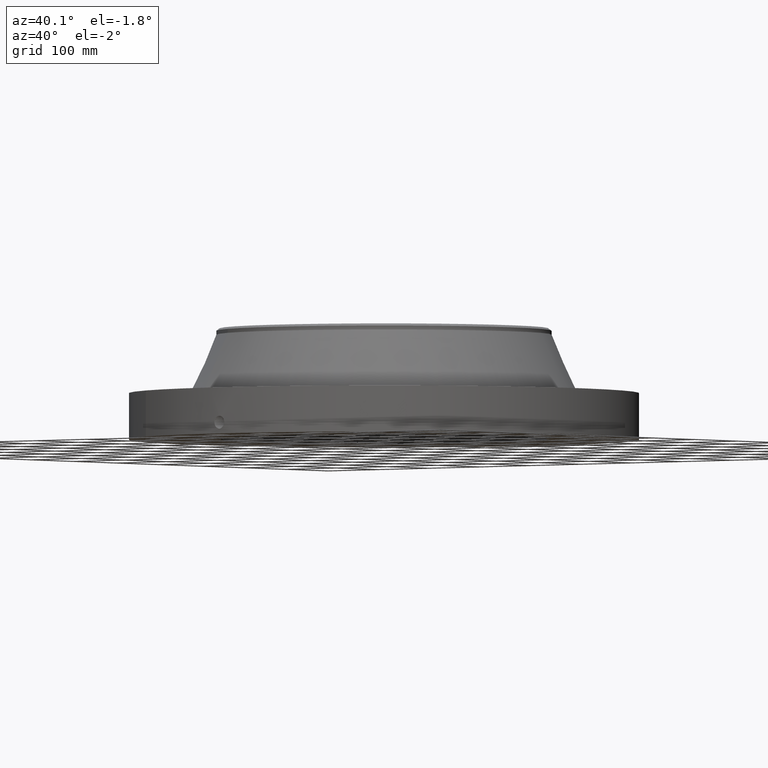
[diagram: clean part render]
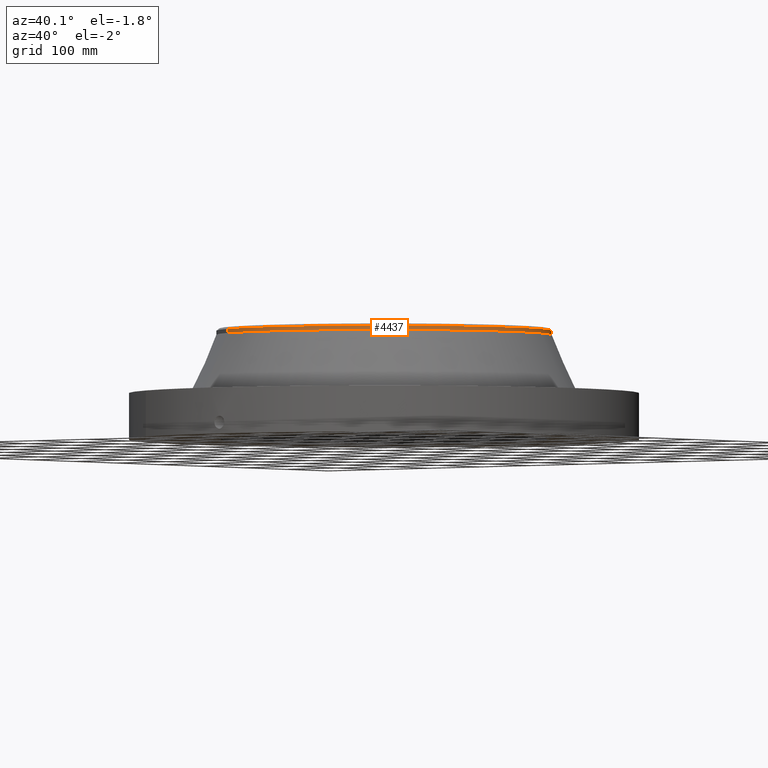
[diagram: same view with one face highlighted and labeled with its STEP entity id]
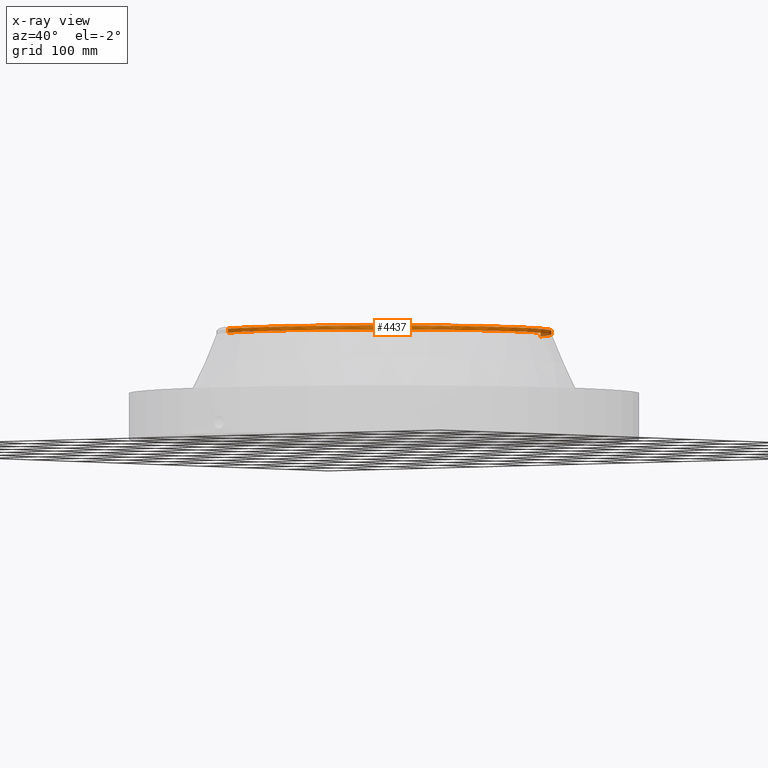
[diagram: x-ray of the same camera — body ghosted, the highlighted face saturated]
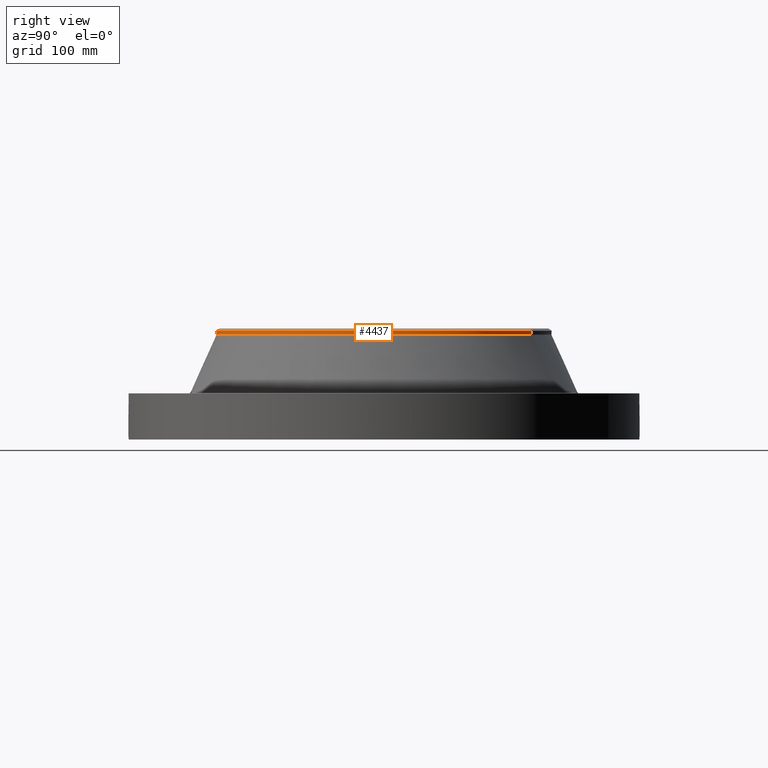
[diagram: same view with one face highlighted and labeled with its STEP entity id]
A machine part, auxiliary view. The second image highlights one B-rep face of the part: STEP entity #4437.
The next image is the same camera in x-ray: the body ghosted, the highlighted face saturated — about 2% of this face is hidden behind the body in this view.
A second angle (right view) of the same face is appended — the face is thin or edge-on in the first view.
In plain terms, the highlighted cylindrical surface (partial cylindrical patch) has radius 254 mm, axis along (0, 0, -1).
Its self-contained STEP definition (entity closure, byte-faithful):
#3600=AXIS2_PLACEMENT_3D('Circle Axis2P3D',#3598,#3599,$) ;
#4067=AXIS2_PLACEMENT_3D('Circle Axis2P3D',#4065,#4066,$) ;
#4080=AXIS2_PLACEMENT_3D('Circle Axis2P3D',#4078,#4079,$) ;
#4418=AXIS2_PLACEMENT_3D('Cylinder Axis2P3D',#4415,#4416,#4417) ;
#3595=CARTESIAN_POINT('Vertex',(4.79425538606,8.77582561894,6.50236722846)) ;
#3598=CARTESIAN_POINT('Axis2P3D Location',(0.,0.,6.50236722846)) ;
#3602=CARTESIAN_POINT('Vertex',(-4.79425538606,-8.77582561894,6.50236722846)) ;
#4048=CARTESIAN_POINT('Vertex',(4.79425538606,-8.77582561894,6.7385877009)) ;
#4062=CARTESIAN_POINT('Vertex',(-4.79425538606,-8.77582561894,6.7385877009)) ;
#4065=CARTESIAN_POINT('Axis2P3D Location',(0.,0.,6.7385877009)) ;
#4078=CARTESIAN_POINT('Axis2P3D Location',(0.,0.,6.7385877009)) ;
#4082=CARTESIAN_POINT('Vertex',(4.79425538606,8.77582561894,6.7385877009)) ;
#4415=CARTESIAN_POINT('Axis2P3D Location',(0.,0.,3.56000000001)) ;
#4420=CARTESIAN_POINT('Line Origine',(-4.79425538606,-8.77582561894,6.62047746468)) ;
#4425=CARTESIAN_POINT('Line Origine',(4.79425538606,8.77582561894,6.62047746468)) ;
#3599=DIRECTION('Axis2P3D Direction',(0.,0.,-0.0393700787402)) ;
#4066=DIRECTION('Axis2P3D Direction',(0.,0.,-0.0393700787402)) ;
#4079=DIRECTION('Axis2P3D Direction',(0.,0.,-0.0393700787402)) ;
#4416=DIRECTION('Axis2P3D Direction',(0.,0.,-0.0393700787402)) ;
#4417=DIRECTION('Axis2P3D XDirection',(-0.0188750212049,-0.0345504945626,0.)) ;
#4421=DIRECTION('Vector Direction',(0.,0.,-0.0393700787402)) ;
#4426=DIRECTION('Vector Direction',(0.,0.,-0.0393700787402)) ;
#4422=VECTOR('Line Direction',#4421,0.0393700787402) ;
#4427=VECTOR('Line Direction',#4426,0.0393700787402) ;
#4431=ORIENTED_EDGE('',*,*,#4424,.F.) ;
#4432=ORIENTED_EDGE('',*,*,#3604,.F.) ;
#4433=ORIENTED_EDGE('',*,*,#4429,.T.) ;
#4434=ORIENTED_EDGE('',*,*,#4084,.F.) ;
#4435=ORIENTED_EDGE('',*,*,#4069,.T.) ;
#4437=ADVANCED_FACE('PartBody',(#4436),#4419,.T.) ;
#3601=CIRCLE('generated circle',#3600,10.) ;
#4068=CIRCLE('generated circle',#4067,10.) ;
#4081=CIRCLE('generated circle',#4080,10.) ;
#4419=CYLINDRICAL_SURFACE('generated cylinder',#4418,10.) ;
#3604=EDGE_CURVE('',#3596,#3603,#3601,.T.) ;
#4069=EDGE_CURVE('',#4049,#4063,#4068,.T.) ;
#4084=EDGE_CURVE('',#4049,#4083,#4081,.F.) ;
#4424=EDGE_CURVE('',#3603,#4063,#4423,.F.) ;
#4429=EDGE_CURVE('',#3596,#4083,#4428,.F.) ;
#4430=EDGE_LOOP('',(#4431,#4432,#4433,#4434,#4435)) ;
#4436=FACE_OUTER_BOUND('',#4430,.T.) ;
#4423=LINE('Line',#4420,#4422) ;
#4428=LINE('Line',#4425,#4427) ;
#3596=VERTEX_POINT('',#3595) ;
#3603=VERTEX_POINT('',#3602) ;
#4049=VERTEX_POINT('',#4048) ;
#4063=VERTEX_POINT('',#4062) ;
#4083=VERTEX_POINT('',#4082) ;